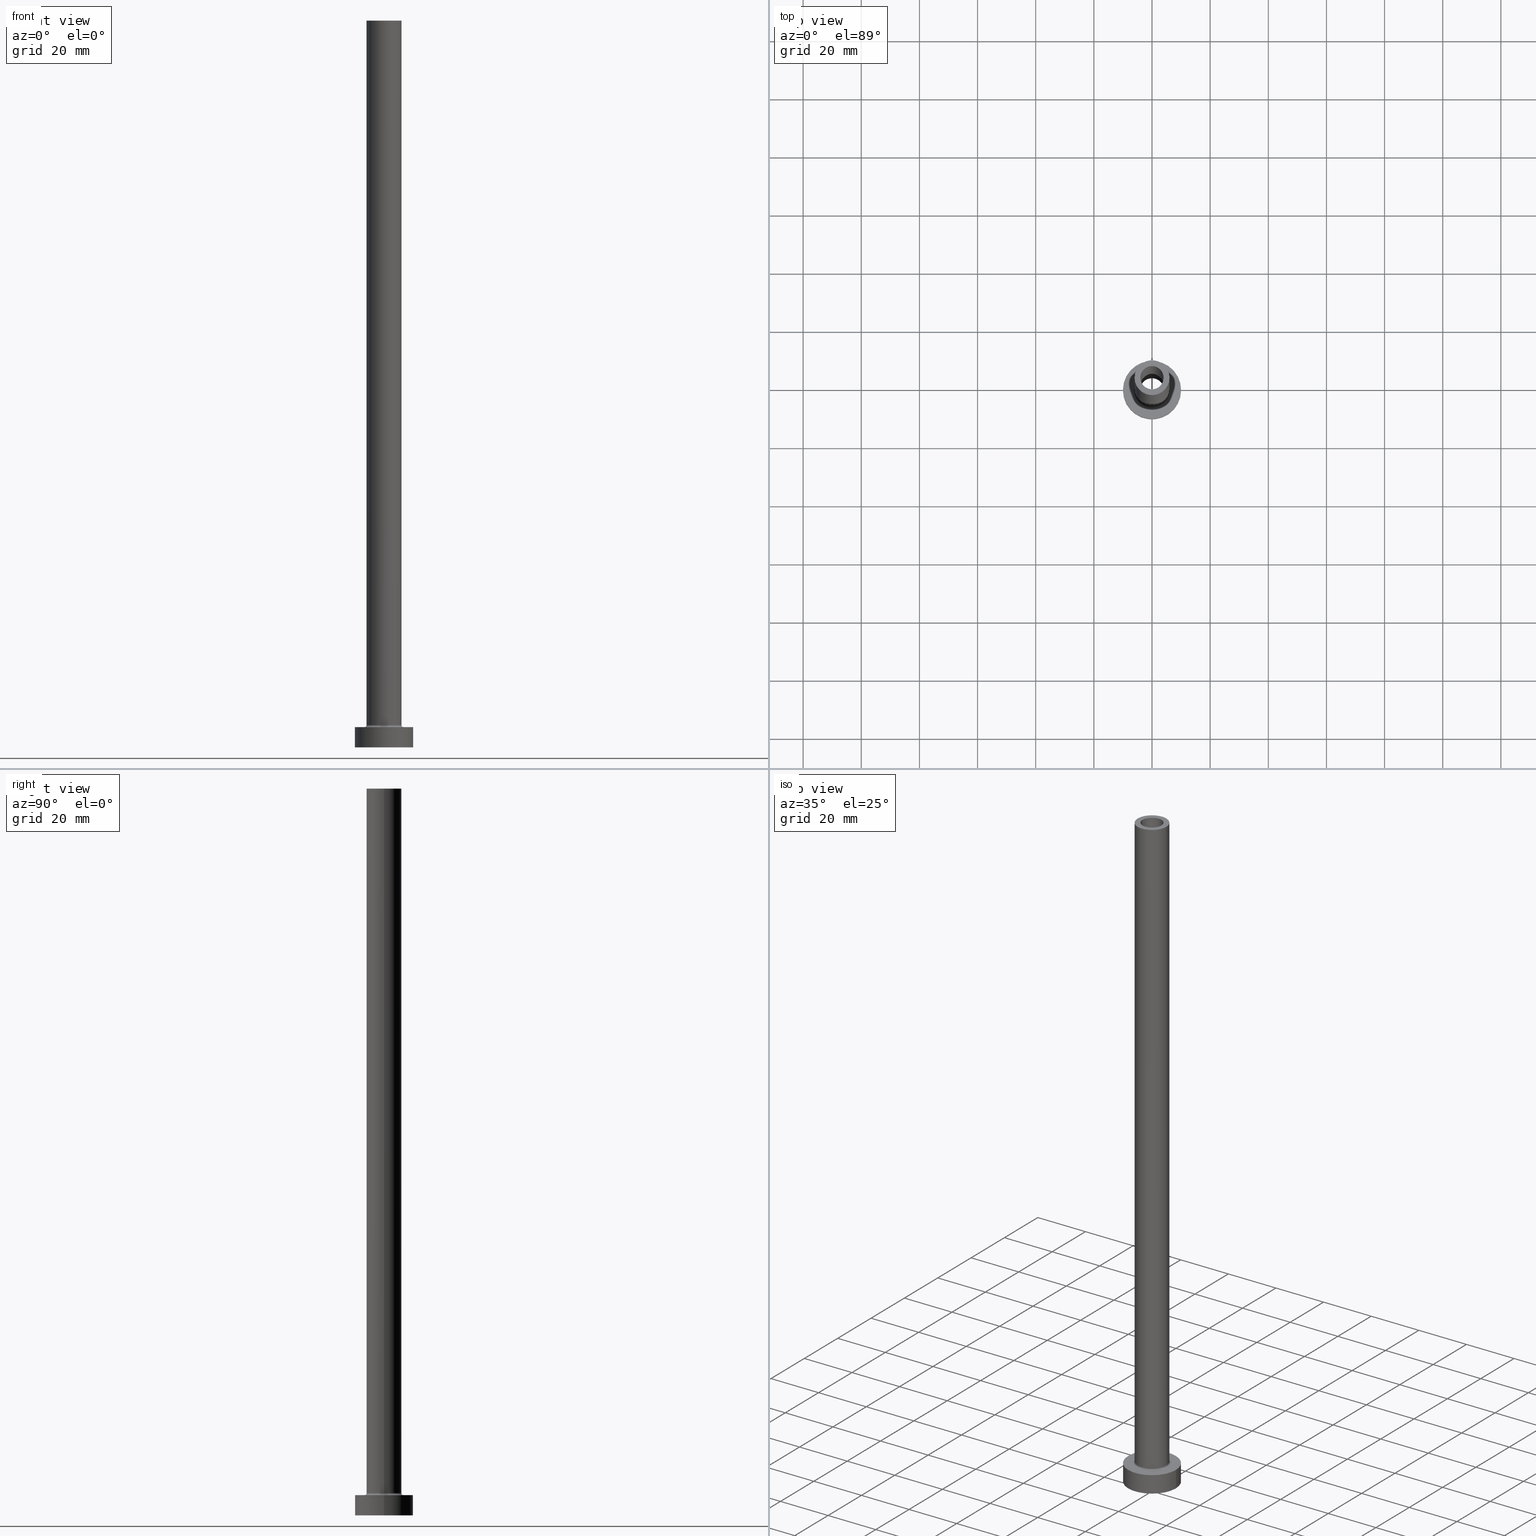
[diagram: canonical four-view strip — front | top / right | iso, engineering-drawing reading convention]
A machine part, canonical four-view strip (front | top / right | iso — engineering-drawing reading convention). The complete STEP part file that produces these views, byte-faithful:
ISO-10303-21;
HEADER;
FILE_DESCRIPTION (( 'STEP AP203' ),
    '1' );
FILE_NAME ('218a.STEP',
    '2023-02-13T12:45:19',
    ( '' ),
    ( '' ),
    'SwSTEP 2.0',
    'SolidWorks 2019',
    '' );
FILE_SCHEMA (( 'CONFIG_CONTROL_DESIGN' ));
ENDSEC;

DATA;
#1 = CARTESIAN_POINT ( 'NONE',  ( 0.000000000000000000, 0.000000000000000000, 250.0000000000000000 ) ) ;
#2 = ORIENTED_EDGE ( 'NONE', *, *, #33, .F. ) ;
#3 = CARTESIAN_POINT ( 'NONE',  ( 4.150000000000000355, 5.082284216461514170E-16, 0.000000000000000000 ) ) ;
#4 = ORIENTED_EDGE ( 'NONE', *, *, #184, .F. ) ;
#5 = PERSON_AND_ORGANIZATION ( #108, #148 ) ;
#6 = EDGE_LOOP ( 'NONE', ( #296, #183, #154, #351 ) ) ;
#7 = AXIS2_PLACEMENT_3D ( 'NONE', #61, #211, #136 ) ;
#8 = TOROIDAL_SURFACE ( 'NONE', #300, 6.700000000000001066, 0.6999999999999999556 ) ;
#9 = EDGE_LOOP ( 'NONE', ( #455, #192 ) ) ;
#10 = DATE_AND_TIME ( #282, #379 ) ;
#11 = CARTESIAN_POINT ( 'NONE',  ( 0.000000000000000000, 0.000000000000000000, 250.0000000000000000 ) ) ;
#12 = CARTESIAN_POINT ( 'NONE',  ( 0.000000000000000000, 0.000000000000000000, 0.000000000000000000 ) ) ;
#13 = DIRECTION ( 'NONE',  ( 0.000000000000000000, 0.000000000000000000, 1.000000000000000000 ) ) ;
#14 = EDGE_CURVE ( 'NONE', #263, #46, #224, .T. ) ;
#15 = AXIS2_PLACEMENT_3D ( 'NONE', #352, #257, #206 ) ;
#16 = DIRECTION ( 'NONE',  ( 1.000000000000000000, 0.000000000000000000, 0.000000000000000000 ) ) ;
#17 = AXIS2_PLACEMENT_3D ( 'NONE', #1, #118, #141 ) ;
#18 = CARTESIAN_POINT ( 'NONE',  ( -4.000000000000000000, 0.000000000000000000, 250.0000000000000000 ) ) ;
#19 = EDGE_LOOP ( 'NONE', ( #424, #82, #165, #220 ) ) ;
#20 = FACE_OUTER_BOUND ( 'NONE', #267, .T. ) ;
#21 = CARTESIAN_POINT ( 'NONE',  ( -4.150000000000000355, 0.000000000000000000, 0.000000000000000000 ) ) ;
#22 = PRODUCT ( '218a', '218a', '', ( #34 ) ) ;
#23 = EDGE_CURVE ( 'NONE', #39, #92, #186, .T. ) ;
#24 = DIRECTION ( 'NONE',  ( -1.000000000000000000, 0.000000000000000000, 0.000000000000000000 ) ) ;
#25 = CIRCLE ( 'NONE', #57, 6.000000000000000888 ) ;
#26 = CIRCLE ( 'NONE', #292, 10.00000000000000000 ) ;
#27 = CYLINDRICAL_SURFACE ( 'NONE', #266, 4.150000000000000355 ) ;
#28 =( LENGTH_UNIT ( ) NAMED_UNIT ( * ) SI_UNIT ( .MILLI., .METRE. ) );
#29 = CARTESIAN_POINT ( 'NONE',  ( 10.00000000000000000, 1.224646799147353256E-15, 7.000000000000000000 ) ) ;
#30 = FACE_BOUND ( 'NONE', #289, .T. ) ;
#31 = CIRCLE ( 'NONE', #181, 6.700000000000001066 ) ;
#32 =( NAMED_UNIT ( * ) SI_UNIT ( $, .STERADIAN. ) SOLID_ANGLE_UNIT ( ) );
#33 = EDGE_CURVE ( 'NONE', #457, #392, #242, .T. ) ;
#34 = MECHANICAL_CONTEXT ( 'NONE', #213, 'mechanical' ) ;
#35 = CYLINDRICAL_SURFACE ( 'NONE', #248, 10.00000000000000000 ) ;
#36 = ORIENTED_EDGE ( 'NONE', *, *, #14, .F. ) ;
#37 = ADVANCED_BREP_SHAPE_REPRESENTATION ( '218a', ( #297, #304 ), #173 ) ;
#38 = DIRECTION ( 'NONE',  ( 1.000000000000000000, 0.000000000000000000, 0.000000000000000000 ) ) ;
#39 = VERTEX_POINT ( 'NONE', #418 ) ;
#40 = VECTOR ( 'NONE', #68, 1000.000000000000000 ) ;
#41 = VERTEX_POINT ( 'NONE', #461 ) ;
#42 = FACE_BOUND ( 'NONE', #49, .T. ) ;
#43 = SECURITY_CLASSIFICATION_LEVEL ( 'unclassified' ) ;
#44 = CC_DESIGN_PERSON_AND_ORGANIZATION_ASSIGNMENT ( #178, #318, ( #225 ) ) ;
#45 = CYLINDRICAL_SURFACE ( 'NONE', #137, 6.000000000000000888 ) ;
#46 = VERTEX_POINT ( 'NONE', #103 ) ;
#47 = CARTESIAN_POINT ( 'NONE',  ( 10.00000000000000000, 1.224646799147353256E-15, 0.000000000000000000 ) ) ;
#48 = PERSON_AND_ORGANIZATION ( #108, #148 ) ;
#49 = EDGE_LOOP ( 'NONE', ( #315, #259 ) ) ;
#50 = CARTESIAN_POINT ( 'NONE',  ( 0.000000000000000000, 0.000000000000000000, 7.000000000000000000 ) ) ;
#51 = CARTESIAN_POINT ( 'NONE',  ( 0.000000000000000000, 0.000000000000000000, 7.000000000000000000 ) ) ;
#52 = FACE_OUTER_BOUND ( 'NONE', #223, .T. ) ;
#53 = DIRECTION ( 'NONE',  ( 0.000000000000000000, 0.000000000000000000, 1.000000000000000000 ) ) ;
#54 = CYLINDRICAL_SURFACE ( 'NONE', #100, 4.000000000000000000 ) ;
#55 = ADVANCED_FACE ( 'NONE', ( #293, #101 ), #381, .F. ) ;
#56 = EDGE_CURVE ( 'NONE', #46, #239, #93, .T. ) ;
#57 = AXIS2_PLACEMENT_3D ( 'NONE', #241, #280, #198 ) ;
#58 = VECTOR ( 'NONE', #222, 1000.000000000000000 ) ;
#59 = EDGE_CURVE ( 'NONE', #398, #117, #450, .T. ) ;
#60 = CARTESIAN_POINT ( 'NONE',  ( 0.000000000000000000, 0.000000000000000000, 205.0000000000000284 ) ) ;
#61 = CARTESIAN_POINT ( 'NONE',  ( -6.700000000000001066, 8.205133554287267548E-16, 7.700000000000012612 ) ) ;
#62 = DIRECTION ( 'NONE',  ( 1.000000000000000000, 0.000000000000000000, 0.000000000000000000 ) ) ;
#63 = CARTESIAN_POINT ( 'NONE',  ( 0.000000000000000000, 0.000000000000000000, 250.0000000000000000 ) ) ;
#64 = FACE_OUTER_BOUND ( 'NONE', #115, .T. ) ;
#65 = ORIENTED_EDGE ( 'NONE', *, *, #56, .F. ) ;
#66 = PRODUCT_RELATED_PRODUCT_CATEGORY ( 'detail', '', ( #22 ) ) ;
#67 = CC_DESIGN_APPROVAL ( #126, ( #283 ) ) ;
#68 = DIRECTION ( 'NONE',  ( -0.000000000000000000, -0.000000000000000000, -1.000000000000000000 ) ) ;
#69 = DIRECTION ( 'NONE',  ( 0.000000000000000000, 0.000000000000000000, 1.000000000000000000 ) ) ;
#70 = DATE_AND_TIME ( #312, #243 ) ;
#71 = PERSON_AND_ORGANIZATION ( #108, #148 ) ;
#72 = ORIENTED_EDGE ( 'NONE', *, *, #442, .F. ) ;
#73 = CARTESIAN_POINT ( 'NONE',  ( 0.000000000000000000, 0.000000000000000000, 216.7379725676967155 ) ) ;
#74 = PERSON_AND_ORGANIZATION_ROLE ( 'creator' ) ;
#75 = DIRECTION ( 'NONE',  ( 0.000000000000000000, 0.000000000000000000, 1.000000000000000000 ) ) ;
#76 = VERTEX_POINT ( 'NONE', #342 ) ;
#77 = ADVANCED_FACE ( 'NONE', ( #193, #134 ), #90, .F. ) ;
#78 = DIRECTION ( 'NONE',  ( 1.000000000000000000, 0.000000000000000000, 0.000000000000000000 ) ) ;
#79 = ORIENTED_EDGE ( 'NONE', *, *, #130, .F. ) ;
#80 = EDGE_CURVE ( 'NONE', #392, #457, #303, .T. ) ;
#81 = EDGE_LOOP ( 'NONE', ( #454, #268, #159, #177 ) ) ;
#82 = ORIENTED_EDGE ( 'NONE', *, *, #144, .T. ) ;
#83 = ORIENTED_EDGE ( 'NONE', *, *, #169, .T. ) ;
#84 = COORDINATED_UNIVERSAL_TIME_OFFSET ( 1, 0, .AHEAD. ) ;
#85 = APPROVAL ( #135, 'NEUR�EN�' ) ;
#86 = DIRECTION ( 'NONE',  ( 1.000000000000000000, 0.000000000000000000, 0.000000000000000000 ) ) ;
#87 = DIRECTION ( 'NONE',  ( 0.000000000000000000, 0.000000000000000000, 1.000000000000000000 ) ) ;
#88 = CYLINDRICAL_SURFACE ( 'NONE', #445, 10.00000000000000000 ) ;
#89 = ORIENTED_EDGE ( 'NONE', *, *, #144, .F. ) ;
#90 = PLANE ( 'NONE',  #275 ) ;
#91 = DIRECTION ( 'NONE',  ( 1.000000000000000000, 0.000000000000000000, 0.000000000000000000 ) ) ;
#92 = VERTEX_POINT ( 'NONE', #413 ) ;
#93 = CIRCLE ( 'NONE', #195, 6.700000000000001066 ) ;
#94 = AXIS2_PLACEMENT_3D ( 'NONE', #367, #187, #402 ) ;
#95 = EDGE_CURVE ( 'NONE', #457, #398, #274, .T. ) ;
#96 = FACE_OUTER_BOUND ( 'NONE', #19, .T. ) ;
#97 = DIRECTION ( 'NONE',  ( 0.000000000000000000, 0.000000000000000000, -1.000000000000000000 ) ) ;
#98 = DIRECTION ( 'NONE',  ( 1.000000000000000000, 0.000000000000000000, 0.000000000000000000 ) ) ;
#99 = CC_DESIGN_PERSON_AND_ORGANIZATION_ASSIGNMENT ( #48, #74, ( #102 ) ) ;
#100 = AXIS2_PLACEMENT_3D ( 'NONE', #338, #447, #167 ) ;
#101 = FACE_OUTER_BOUND ( 'NONE', #162, .T. ) ;
#102 = PRODUCT_DEFINITION_FORMATION_WITH_SPECIFIED_SOURCE ( 'LIBOVOLN�', '', #22, .NOT_KNOWN. ) ;
#103 = CARTESIAN_POINT ( 'NONE',  ( -6.700000000000001066, 8.205133554287267548E-16, 7.000000000000006217 ) ) ;
#104 = DATE_AND_TIME ( #417, #325 ) ;
#105 = PERSON_AND_ORGANIZATION_ROLE ( 'design_owner' ) ;
#106 = EDGE_CURVE ( 'NONE', #41, #422, #324, .T. ) ;
#107 = CARTESIAN_POINT ( 'NONE',  ( 0.000000000000000000, 0.000000000000000000, 7.700000000000012612 ) ) ;
#108 = PERSON ( 'NEUR�EN�', 'NEUR�EN�', 'NEUR�EN�', ('NEUR�EN�'), ('NEUR�EN�'), ('NEUR�EN�') ) ;
#109 = DATE_AND_TIME ( #288, #436 ) ;
#110 = DIRECTION ( 'NONE',  ( 1.000000000000000000, 0.000000000000000000, 0.000000000000000000 ) ) ;
#111 = AXIS2_PLACEMENT_3D ( 'NONE', #209, #138, #423 ) ;
#112 = ORIENTED_EDGE ( 'NONE', *, *, #80, .T. ) ;
#113 = CARTESIAN_POINT ( 'NONE',  ( 0.000000000000000000, 0.000000000000000000, 205.0000000000000284 ) ) ;
#114 = CARTESIAN_POINT ( 'NONE',  ( 6.000000000000000888, 7.347880794884120722E-16, 250.0000000000000000 ) ) ;
#115 = EDGE_LOOP ( 'NONE', ( #189, #294 ) ) ;
#116 = DATE_TIME_ROLE ( 'classification_date' ) ;
#117 = VERTEX_POINT ( 'NONE', #21 ) ;
#118 = DIRECTION ( 'NONE',  ( 0.000000000000000000, 0.000000000000000000, 1.000000000000000000 ) ) ;
#119 = ORIENTED_EDGE ( 'NONE', *, *, #184, .T. ) ;
#120 = AXIS2_PLACEMENT_3D ( 'NONE', #60, #75, #344 ) ;
#121 = EDGE_LOOP ( 'NONE', ( #4, #175, #355, #326 ) ) ;
#122 = CC_DESIGN_APPROVAL ( #245, ( #225 ) ) ;
#123 = EDGE_CURVE ( 'NONE', #428, #176, #443, .T. ) ;
#124 = ORIENTED_EDGE ( 'NONE', *, *, #158, .F. ) ;
#125 = DIRECTION ( 'NONE',  ( 0.000000000000000000, -1.000000000000000000, 0.000000000000000000 ) ) ;
#126 = APPROVAL ( #320, 'NEUR�EN�' ) ;
#127 = SHAPE_DEFINITION_REPRESENTATION ( #440, #37 ) ;
#128 = AXIS2_PLACEMENT_3D ( 'NONE', #63, #97, #24 ) ;
#129 = EDGE_LOOP ( 'NONE', ( #250, #354 ) ) ;
#130 = EDGE_CURVE ( 'NONE', #41, #263, #375, .T. ) ;
#131 = CARTESIAN_POINT ( 'NONE',  ( -10.00000000000000000, 0.000000000000000000, 7.000000000000000000 ) ) ;
#132 = AXIS2_PLACEMENT_3D ( 'NONE', #371, #53, #335 ) ;
#133 = APPROVAL_PERSON_ORGANIZATION ( #5, #245, #341 ) ;
#134 = FACE_OUTER_BOUND ( 'NONE', #9, .T. ) ;
#135 = APPROVAL_STATUS ( 'not_yet_approved' ) ;
#136 = DIRECTION ( 'NONE',  ( -1.000000000000000000, 1.224646799147353454E-16, 0.000000000000000000 ) ) ;
#137 = AXIS2_PLACEMENT_3D ( 'NONE', #190, #329, #185 ) ;
#138 = DIRECTION ( 'NONE',  ( 0.000000000000000000, 0.000000000000000000, 1.000000000000000000 ) ) ;
#139 = DIRECTION ( 'NONE',  ( 0.000000000000000000, 0.000000000000000000, 1.000000000000000000 ) ) ;
#140 = DIRECTION ( 'NONE',  ( 0.000000000000000000, 0.000000000000000000, 1.000000000000000000 ) ) ;
#141 = DIRECTION ( 'NONE',  ( 1.000000000000000000, 0.000000000000000000, 0.000000000000000000 ) ) ;
#142 = CARTESIAN_POINT ( 'NONE',  ( 6.000000000000000888, 7.347880794884120722E-16, 250.0000000000000000 ) ) ;
#143 = CARTESIAN_POINT ( 'NONE',  ( 0.000000000000000000, 0.000000000000000000, 250.0000000000000000 ) ) ;
#144 = EDGE_CURVE ( 'NONE', #400, #287, #317, .T. ) ;
#145 = DIRECTION ( 'NONE',  ( 1.000000000000000000, 0.000000000000000000, 0.000000000000000000 ) ) ;
#146 = AXIS2_PLACEMENT_3D ( 'NONE', #444, #409, #98 ) ;
#147 = ADVANCED_FACE ( 'NONE', ( #350 ), #27, .F. ) ;
#148 = ORGANIZATION ( 'NEUR�EN�', 'NEUR�EN�', '' ) ;
#149 = EDGE_LOOP ( 'NONE', ( #72, #124, #347, #441 ) ) ;
#150 = DATE_AND_TIME ( #459, #401 ) ;
#151 = ADVANCED_FACE ( 'NONE', ( #30, #64 ), #311, .T. ) ;
#152 = DIRECTION ( 'NONE',  ( -0.000000000000000000, -0.000000000000000000, -1.000000000000000000 ) ) ;
#153 = ORIENTED_EDGE ( 'NONE', *, *, #327, .T. ) ;
#154 = ORIENTED_EDGE ( 'NONE', *, *, #340, .F. ) ;
#155 = ORIENTED_EDGE ( 'NONE', *, *, #403, .T. ) ;
#156 = APPROVAL_PERSON_ORGANIZATION ( #214, #85, #380 ) ;
#157 = CARTESIAN_POINT ( 'NONE',  ( 4.000000000000000000, 4.898587196589411843E-16, 250.0000000000000000 ) ) ;
#158 = EDGE_CURVE ( 'NONE', #428, #254, #234, .T. ) ;
#159 = ORIENTED_EDGE ( 'NONE', *, *, #23, .F. ) ;
#160 = PLANE ( 'NONE',  #332 ) ;
#161 = CC_DESIGN_SECURITY_CLASSIFICATION ( #225, ( #102 ) ) ;
#162 = EDGE_LOOP ( 'NONE', ( #366, #2 ) ) ;
#163 = ADVANCED_FACE ( 'NONE', ( #42, #330 ), #160, .T. ) ;
#164 = DIRECTION ( 'NONE',  ( 0.000000000000000000, 0.000000000000000000, 1.000000000000000000 ) ) ;
#165 = ORIENTED_EDGE ( 'NONE', *, *, #174, .T. ) ;
#166 = ADVANCED_FACE ( 'NONE', ( #368 ), #88, .T. ) ;
#167 = DIRECTION ( 'NONE',  ( -1.000000000000000000, 0.000000000000000000, 0.000000000000000000 ) ) ;
#168 = VECTOR ( 'NONE', #363, 1000.000000000000000 ) ;
#169 = EDGE_CURVE ( 'NONE', #263, #76, #25, .T. ) ;
#170 = CARTESIAN_POINT ( 'NONE',  ( -4.150000000000000355, 0.000000000000000000, 216.7379725676967155 ) ) ;
#171 = DESIGN_CONTEXT ( 'detailed design', #376, 'design' ) ;
#172 = AXIS2_PLACEMENT_3D ( 'NONE', #249, #260, #420 ) ;
#173 =( GEOMETRIC_REPRESENTATION_CONTEXT ( 3 ) GLOBAL_UNCERTAINTY_ASSIGNED_CONTEXT ( ( #281 ) ) GLOBAL_UNIT_ASSIGNED_CONTEXT ( ( #28, #416, #32 ) ) REPRESENTATION_CONTEXT ( 'NONE', 'WORKASPACE' ) );
#174 = EDGE_CURVE ( 'NONE', #287, #39, #333, .T. ) ;
#175 = ORIENTED_EDGE ( 'NONE', *, *, #442, .T. ) ;
#176 = VERTEX_POINT ( 'NONE', #247 ) ;
#177 = ORIENTED_EDGE ( 'NONE', *, *, #174, .F. ) ;
#178 = PERSON_AND_ORGANIZATION ( #108, #148 ) ;
#179 = CC_DESIGN_DATE_AND_TIME_ASSIGNMENT ( #70, #210, ( #283 ) ) ;
#180 = CIRCLE ( 'NONE', #291, 6.000000000000000888 ) ;
#181 = AXIS2_PLACEMENT_3D ( 'NONE', #50, #271, #86 ) ;
#182 = CARTESIAN_POINT ( 'NONE',  ( 10.00000000000000000, 1.224646799147353256E-15, 7.000000000000000000 ) ) ;
#183 = ORIENTED_EDGE ( 'NONE', *, *, #14, .T. ) ;
#184 = EDGE_CURVE ( 'NONE', #254, #428, #446, .T. ) ;
#185 = DIRECTION ( 'NONE',  ( -1.000000000000000000, 0.000000000000000000, 0.000000000000000000 ) ) ;
#186 = CIRCLE ( 'NONE', #172, 4.000000000000000000 ) ;
#187 = DIRECTION ( 'NONE',  ( 0.000000000000000000, 0.000000000000000000, 1.000000000000000000 ) ) ;
#188 = CYLINDRICAL_SURFACE ( 'NONE', #197, 6.000000000000000888 ) ;
#189 = ORIENTED_EDGE ( 'NONE', *, *, #106, .T. ) ;
#190 = CARTESIAN_POINT ( 'NONE',  ( 0.000000000000000000, 0.000000000000000000, 250.0000000000000000 ) ) ;
#191 = DIRECTION ( 'NONE',  ( 1.000000000000000000, 0.000000000000000000, -0.000000000000000000 ) ) ;
#192 = ORIENTED_EDGE ( 'NONE', *, *, #372, .F. ) ;
#193 = FACE_BOUND ( 'NONE', #301, .T. ) ;
#194 = DIRECTION ( 'NONE',  ( -1.000000000000000000, 0.000000000000000000, 0.000000000000000000 ) ) ;
#195 = AXIS2_PLACEMENT_3D ( 'NONE', #252, #221, #110 ) ;
#196 = CARTESIAN_POINT ( 'NONE',  ( 6.700000000000001066, 0.000000000000000000, 7.700000000000012612 ) ) ;
#197 = AXIS2_PLACEMENT_3D ( 'NONE', #11, #205, #203 ) ;
#198 = DIRECTION ( 'NONE',  ( 1.000000000000000000, 0.000000000000000000, 0.000000000000000000 ) ) ;
#199 = CARTESIAN_POINT ( 'NONE',  ( -6.000000000000000888, 0.000000000000000000, 250.0000000000000000 ) ) ;
#200 = CARTESIAN_POINT ( 'NONE',  ( 0.000000000000000000, 0.000000000000000000, 7.000000000000000000 ) ) ;
#201 = EDGE_CURVE ( 'NONE', #76, #263, #180, .T. ) ;
#202 = CARTESIAN_POINT ( 'NONE',  ( 6.700000000000001066, 0.000000000000000000, 7.000000000000006217 ) ) ;
#203 = DIRECTION ( 'NONE',  ( -1.000000000000000000, 0.000000000000000000, 0.000000000000000000 ) ) ;
#204 = AXIS2_PLACEMENT_3D ( 'NONE', #406, #438, #230 ) ;
#205 = DIRECTION ( 'NONE',  ( -0.000000000000000000, -0.000000000000000000, -1.000000000000000000 ) ) ;
#206 = DIRECTION ( 'NONE',  ( 1.000000000000000000, 0.000000000000000000, 0.000000000000000000 ) ) ;
#207 = EDGE_CURVE ( 'NONE', #117, #398, #339, .T. ) ;
#208 = LINE ( 'NONE', #170, #365 ) ;
#209 = CARTESIAN_POINT ( 'NONE',  ( 0.000000000000000000, 0.000000000000000000, 250.0000000000000000 ) ) ;
#210 = DATE_TIME_ROLE ( 'creation_date' ) ;
#211 = DIRECTION ( 'NONE',  ( 1.224646799147353207E-16, 1.000000000000000000, -0.000000000000000000 ) ) ;
#212 = ADVANCED_FACE ( 'NONE', ( #96 ), #54, .F. ) ;
#213 = APPLICATION_CONTEXT ( 'configuration controlled 3d designs of mechanical parts and assemblies' ) ;
#214 = PERSON_AND_ORGANIZATION ( #108, #148 ) ;
#215 = CLOSED_SHELL ( 'NONE', ( #236, #147, #425, #345, #388, #166, #163, #77, #231, #151, #411, #270, #55, #212 ) ) ;
#216 = PERSON_AND_ORGANIZATION ( #108, #148 ) ;
#217 = CIRCLE ( 'NONE', #17, 6.000000000000000888 ) ;
#218 = ORIENTED_EDGE ( 'NONE', *, *, #95, .T. ) ;
#219 = PERSON_AND_ORGANIZATION_ROLE ( 'creator' ) ;
#220 = ORIENTED_EDGE ( 'NONE', *, *, #265, .F. ) ;
#221 = DIRECTION ( 'NONE',  ( -0.000000000000000000, -0.000000000000000000, -1.000000000000000000 ) ) ;
#222 = DIRECTION ( 'NONE',  ( -0.000000000000000000, -0.000000000000000000, -1.000000000000000000 ) ) ;
#223 = EDGE_LOOP ( 'NONE', ( #232, #290, #298, #262 ) ) ;
#224 = CIRCLE ( 'NONE', #7, 0.7000000000000000666 ) ;
#225 = SECURITY_CLASSIFICATION ( '', '', #43 ) ;
#226 = CARTESIAN_POINT ( 'NONE',  ( 4.000000000000000000, 4.898587196589411843E-16, 250.0000000000000000 ) ) ;
#227 = ORIENTED_EDGE ( 'NONE', *, *, #201, .T. ) ;
#228 = DIRECTION ( 'NONE',  ( 1.000000000000000000, 0.000000000000000000, 0.000000000000000000 ) ) ;
#229 = ORIENTED_EDGE ( 'NONE', *, *, #456, .F. ) ;
#230 = DIRECTION ( 'NONE',  ( -1.000000000000000000, 0.000000000000000000, 0.000000000000000000 ) ) ;
#231 = ADVANCED_FACE ( 'NONE', ( #412 ), #188, .T. ) ;
#232 = ORIENTED_EDGE ( 'NONE', *, *, #95, .F. ) ;
#233 = CYLINDRICAL_SURFACE ( 'NONE', #204, 4.150000000000000355 ) ;
#234 = CIRCLE ( 'NONE', #346, 10.00000000000000000 ) ;
#235 = AXIS2_PLACEMENT_3D ( 'NONE', #12, #87, #78 ) ;
#236 = ADVANCED_FACE ( 'NONE', ( #453 ), #448, .F. ) ;
#237 = LINE ( 'NONE', #157, #168 ) ;
#238 = EDGE_CURVE ( 'NONE', #392, #117, #208, .T. ) ;
#239 = VERTEX_POINT ( 'NONE', #202 ) ;
#240 = DIRECTION ( 'NONE',  ( 0.000000000000000000, 0.000000000000000000, 1.000000000000000000 ) ) ;
#241 = CARTESIAN_POINT ( 'NONE',  ( 0.000000000000000000, 0.000000000000000000, 7.700000000000012612 ) ) ;
#242 = CIRCLE ( 'NONE', #299, 4.150000000000000355 ) ;
#243 = LOCAL_TIME ( 13, 45, 19.00000000000000000, #84 ) ;
#244 = DIRECTION ( 'NONE',  ( 1.000000000000000000, 0.000000000000000000, -0.000000000000000000 ) ) ;
#245 = APPROVAL ( #394, 'NEUR�EN�' ) ;
#246 = DIRECTION ( 'NONE',  ( 0.000000000000000000, 0.000000000000000000, -1.000000000000000000 ) ) ;
#247 = CARTESIAN_POINT ( 'NONE',  ( -10.00000000000000000, 0.000000000000000000, 0.000000000000000000 ) ) ;
#248 = AXIS2_PLACEMENT_3D ( 'NONE', #391, #152, #396 ) ;
#249 = CARTESIAN_POINT ( 'NONE',  ( 0.000000000000000000, 0.000000000000000000, 205.0000000000000284 ) ) ;
#250 = ORIENTED_EDGE ( 'NONE', *, *, #23, .T. ) ;
#251 = APPLICATION_PROTOCOL_DEFINITION ( 'international standard', 'config_control_design', 1994, #213 ) ;
#252 = CARTESIAN_POINT ( 'NONE',  ( 0.000000000000000000, 0.000000000000000000, 7.000000000000000000 ) ) ;
#253 = CARTESIAN_POINT ( 'NONE',  ( -10.00000000000000000, 0.000000000000000000, 7.000000000000000000 ) ) ;
#254 = VERTEX_POINT ( 'NONE', #29 ) ;
#255 = AXIS2_PLACEMENT_3D ( 'NONE', #200, #336, #91 ) ;
#256 = COORDINATED_UNIVERSAL_TIME_OFFSET ( 1, 0, .AHEAD. ) ;
#257 = DIRECTION ( 'NONE',  ( -0.000000000000000000, -0.000000000000000000, -1.000000000000000000 ) ) ;
#258 = CC_DESIGN_PERSON_AND_ORGANIZATION_ASSIGNMENT ( #71, #219, ( #283 ) ) ;
#259 = ORIENTED_EDGE ( 'NONE', *, *, #56, .T. ) ;
#260 = DIRECTION ( 'NONE',  ( 0.000000000000000000, 0.000000000000000000, 1.000000000000000000 ) ) ;
#261 = EDGE_LOOP ( 'NONE', ( #112, #218, #316, #369 ) ) ;
#262 = ORIENTED_EDGE ( 'NONE', *, *, #207, .T. ) ;
#263 = VERTEX_POINT ( 'NONE', #370 ) ;
#264 = DIRECTION ( 'NONE',  ( 0.000000000000000000, 0.000000000000000000, 1.000000000000000000 ) ) ;
#265 = EDGE_CURVE ( 'NONE', #92, #39, #285, .T. ) ;
#266 = AXIS2_PLACEMENT_3D ( 'NONE', #73, #449, #389 ) ;
#267 = EDGE_LOOP ( 'NONE', ( #433, #155, #227, #79 ) ) ;
#268 = ORIENTED_EDGE ( 'NONE', *, *, #357, .T. ) ;
#269 = DIRECTION ( 'NONE',  ( 0.000000000000000000, 0.000000000000000000, -1.000000000000000000 ) ) ;
#270 = ADVANCED_FACE ( 'NONE', ( #52 ), #233, .F. ) ;
#271 = DIRECTION ( 'NONE',  ( -0.000000000000000000, -0.000000000000000000, -1.000000000000000000 ) ) ;
#272 = APPROVAL_PERSON_ORGANIZATION ( #313, #126, #460 ) ;
#273 = CC_DESIGN_PERSON_AND_ORGANIZATION_ASSIGNMENT ( #216, #105, ( #22 ) ) ;
#274 = LINE ( 'NONE', #377, #364 ) ;
#275 = AXIS2_PLACEMENT_3D ( 'NONE', #279, #277, #244 ) ;
#276 = AXIS2_PLACEMENT_3D ( 'NONE', #310, #431, #451 ) ;
#277 = DIRECTION ( 'NONE',  ( 0.000000000000000000, 0.000000000000000000, 1.000000000000000000 ) ) ;
#278 = CARTESIAN_POINT ( 'NONE',  ( 0.000000000000000000, 0.000000000000000000, 7.000000000000000000 ) ) ;
#279 = CARTESIAN_POINT ( 'NONE',  ( 0.000000000000000000, 0.000000000000000000, 0.000000000000000000 ) ) ;
#280 = DIRECTION ( 'NONE',  ( 0.000000000000000000, 0.000000000000000000, 1.000000000000000000 ) ) ;
#281 = UNCERTAINTY_MEASURE_WITH_UNIT (LENGTH_MEASURE( 1.000000000000000082E-05 ), #28, 'distance_accuracy_value', 'NONE');
#282 = CALENDAR_DATE ( 2023, 13, 2 ) ;
#283 = PRODUCT_DEFINITION ( 'NEZN�M�', '', #102, #171 ) ;
#284 = AXIS2_PLACEMENT_3D ( 'NONE', #143, #295, #439 ) ;
#285 = CIRCLE ( 'NONE', #94, 4.000000000000000000 ) ;
#286 = COORDINATED_UNIVERSAL_TIME_OFFSET ( 1, 0, .AHEAD. ) ;
#287 = VERTEX_POINT ( 'NONE', #305 ) ;
#288 = CALENDAR_DATE ( 2023, 13, 2 ) ;
#289 = EDGE_LOOP ( 'NONE', ( #229, #89 ) ) ;
#290 = ORIENTED_EDGE ( 'NONE', *, *, #33, .T. ) ;
#291 = AXIS2_PLACEMENT_3D ( 'NONE', #404, #164, #415 ) ;
#292 = AXIS2_PLACEMENT_3D ( 'NONE', #322, #383, #62 ) ;
#293 = FACE_BOUND ( 'NONE', #129, .T. ) ;
#294 = ORIENTED_EDGE ( 'NONE', *, *, #452, .T. ) ;
#295 = DIRECTION ( 'NONE',  ( 0.000000000000000000, 0.000000000000000000, 1.000000000000000000 ) ) ;
#296 = ORIENTED_EDGE ( 'NONE', *, *, #169, .F. ) ;
#297 = MANIFOLD_SOLID_BREP ( 'Odebrat vysunut�m4', #215 ) ;
#298 = ORIENTED_EDGE ( 'NONE', *, *, #238, .T. ) ;
#299 = AXIS2_PLACEMENT_3D ( 'NONE', #113, #140, #145 ) ;
#300 = AXIS2_PLACEMENT_3D ( 'NONE', #107, #69, #349 ) ;
#301 = EDGE_LOOP ( 'NONE', ( #397, #405 ) ) ;
#302 = APPROVAL_DATE_TIME ( #10, #245 ) ;
#303 = CIRCLE ( 'NONE', #373, 4.150000000000000355 ) ;
#304 = AXIS2_PLACEMENT_3D ( 'NONE', #429, #139, #343 ) ;
#305 = CARTESIAN_POINT ( 'NONE',  ( -4.000000000000000000, 0.000000000000000000, 250.0000000000000000 ) ) ;
#306 = DIRECTION ( 'NONE',  ( -0.000000000000000000, -0.000000000000000000, -1.000000000000000000 ) ) ;
#307 = DIRECTION ( 'NONE',  ( 0.000000000000000000, 0.000000000000000000, -1.000000000000000000 ) ) ;
#308 = TOROIDAL_SURFACE ( 'NONE', #410, 6.700000000000001066, 0.6999999999999999556 ) ;
#309 = VECTOR ( 'NONE', #407, 1000.000000000000000 ) ;
#310 = CARTESIAN_POINT ( 'NONE',  ( 0.000000000000000000, 0.000000000000000000, 250.0000000000000000 ) ) ;
#311 = PLANE ( 'NONE',  #284 ) ;
#312 = CALENDAR_DATE ( 2023, 13, 2 ) ;
#313 = PERSON_AND_ORGANIZATION ( #108, #148 ) ;
#314 = FACE_OUTER_BOUND ( 'NONE', #6, .T. ) ;
#315 = ORIENTED_EDGE ( 'NONE', *, *, #340, .T. ) ;
#316 = ORIENTED_EDGE ( 'NONE', *, *, #59, .T. ) ;
#317 = CIRCLE ( 'NONE', #111, 4.000000000000000000 ) ;
#318 = PERSON_AND_ORGANIZATION_ROLE ( 'classification_officer' ) ;
#319 = CIRCLE ( 'NONE', #374, 0.7000000000000000666 ) ;
#320 = APPROVAL_STATUS ( 'not_yet_approved' ) ;
#321 = ORIENTED_EDGE ( 'NONE', *, *, #403, .F. ) ;
#322 = CARTESIAN_POINT ( 'NONE',  ( 0.000000000000000000, 0.000000000000000000, 0.000000000000000000 ) ) ;
#323 = PERSON_AND_ORGANIZATION ( #108, #148 ) ;
#324 = CIRCLE ( 'NONE', #132, 6.000000000000000888 ) ;
#325 = LOCAL_TIME ( 13, 45, 19.00000000000000000, #286 ) ;
#326 = ORIENTED_EDGE ( 'NONE', *, *, #123, .F. ) ;
#327 = EDGE_CURVE ( 'NONE', #76, #239, #319, .T. ) ;
#328 = COORDINATED_UNIVERSAL_TIME_OFFSET ( 1, 0, .AHEAD. ) ;
#329 = DIRECTION ( 'NONE',  ( -0.000000000000000000, -0.000000000000000000, -1.000000000000000000 ) ) ;
#330 = FACE_OUTER_BOUND ( 'NONE', #348, .T. ) ;
#331 = CARTESIAN_POINT ( 'NONE',  ( 0.000000000000000000, 0.000000000000000000, 205.0000000000000284 ) ) ;
#332 = AXIS2_PLACEMENT_3D ( 'NONE', #51, #13, #191 ) ;
#333 = LINE ( 'NONE', #18, #378 ) ;
#334 = CIRCLE ( 'NONE', #276, 4.000000000000000000 ) ;
#335 = DIRECTION ( 'NONE',  ( 1.000000000000000000, 0.000000000000000000, 0.000000000000000000 ) ) ;
#336 = DIRECTION ( 'NONE',  ( 0.000000000000000000, 0.000000000000000000, 1.000000000000000000 ) ) ;
#337 = DIRECTION ( 'NONE',  ( -0.000000000000000000, -0.000000000000000000, -1.000000000000000000 ) ) ;
#338 = CARTESIAN_POINT ( 'NONE',  ( 0.000000000000000000, 0.000000000000000000, 250.0000000000000000 ) ) ;
#339 = CIRCLE ( 'NONE', #146, 4.150000000000000355 ) ;
#340 = EDGE_CURVE ( 'NONE', #239, #46, #31, .T. ) ;
#341 = APPROVAL_ROLE ( '' ) ;
#342 = CARTESIAN_POINT ( 'NONE',  ( 6.000000000000000888, 7.347880794884120722E-16, 7.700000000000012612 ) ) ;
#343 = DIRECTION ( 'NONE',  ( 1.000000000000000000, 0.000000000000000000, 0.000000000000000000 ) ) ;
#344 = DIRECTION ( 'NONE',  ( 1.000000000000000000, 0.000000000000000000, -0.000000000000000000 ) ) ;
#345 = ADVANCED_FACE ( 'NONE', ( #20 ), #45, .T. ) ;
#346 = AXIS2_PLACEMENT_3D ( 'NONE', #434, #264, #228 ) ;
#347 = ORIENTED_EDGE ( 'NONE', *, *, #123, .T. ) ;
#348 = EDGE_LOOP ( 'NONE', ( #435, #119 ) ) ;
#349 = DIRECTION ( 'NONE',  ( 1.000000000000000000, 0.000000000000000000, 0.000000000000000000 ) ) ;
#350 = FACE_OUTER_BOUND ( 'NONE', #261, .T. ) ;
#351 = ORIENTED_EDGE ( 'NONE', *, *, #327, .F. ) ;
#352 = CARTESIAN_POINT ( 'NONE',  ( 0.000000000000000000, 0.000000000000000000, 0.000000000000000000 ) ) ;
#353 = CARTESIAN_POINT ( 'NONE',  ( 0.000000000000000000, 0.000000000000000000, 7.700000000000012612 ) ) ;
#354 = ORIENTED_EDGE ( 'NONE', *, *, #265, .T. ) ;
#355 = ORIENTED_EDGE ( 'NONE', *, *, #372, .T. ) ;
#356 = CC_DESIGN_APPROVAL ( #85, ( #102 ) ) ;
#357 = EDGE_CURVE ( 'NONE', #400, #92, #237, .T. ) ;
#358 = LINE ( 'NONE', #114, #58 ) ;
#359 = EDGE_LOOP ( 'NONE', ( #36, #430, #153, #65 ) ) ;
#360 = PERSON_AND_ORGANIZATION_ROLE ( 'design_supplier' ) ;
#361 = VERTEX_POINT ( 'NONE', #47 ) ;
#362 = COORDINATED_UNIVERSAL_TIME_OFFSET ( 1, 0, .AHEAD. ) ;
#363 = DIRECTION ( 'NONE',  ( 0.000000000000000000, 0.000000000000000000, -1.000000000000000000 ) ) ;
#364 = VECTOR ( 'NONE', #246, 1000.000000000000000 ) ;
#365 = VECTOR ( 'NONE', #382, 1000.000000000000000 ) ;
#366 = ORIENTED_EDGE ( 'NONE', *, *, #80, .F. ) ;
#367 = CARTESIAN_POINT ( 'NONE',  ( 0.000000000000000000, 0.000000000000000000, 205.0000000000000284 ) ) ;
#368 = FACE_OUTER_BOUND ( 'NONE', #149, .T. ) ;
#369 = ORIENTED_EDGE ( 'NONE', *, *, #238, .F. ) ;
#370 = CARTESIAN_POINT ( 'NONE',  ( -6.000000000000000888, 0.000000000000000000, 7.700000000000012612 ) ) ;
#371 = CARTESIAN_POINT ( 'NONE',  ( 0.000000000000000000, 0.000000000000000000, 250.0000000000000000 ) ) ;
#372 = EDGE_CURVE ( 'NONE', #361, #176, #458, .T. ) ;
#373 = AXIS2_PLACEMENT_3D ( 'NONE', #331, #240, #16 ) ;
#374 = AXIS2_PLACEMENT_3D ( 'NONE', #196, #125, #269 ) ;
#375 = LINE ( 'NONE', #199, #421 ) ;
#376 = APPLICATION_CONTEXT ( 'configuration controlled 3d designs of mechanical parts and assemblies' ) ;
#377 = CARTESIAN_POINT ( 'NONE',  ( 4.150000000000000355, 5.082284216461514170E-16, 216.7379725676967155 ) ) ;
#378 = VECTOR ( 'NONE', #307, 1000.000000000000000 ) ;
#379 = LOCAL_TIME ( 13, 45, 19.00000000000000000, #328 ) ;
#380 = APPROVAL_ROLE ( '' ) ;
#381 = PLANE ( 'NONE',  #120 ) ;
#382 = DIRECTION ( 'NONE',  ( 0.000000000000000000, 0.000000000000000000, -1.000000000000000000 ) ) ;
#383 = DIRECTION ( 'NONE',  ( 0.000000000000000000, 0.000000000000000000, 1.000000000000000000 ) ) ;
#384 = APPROVAL_DATE_TIME ( #104, #85 ) ;
#385 = FACE_OUTER_BOUND ( 'NONE', #359, .T. ) ;
#386 = APPROVAL_DATE_TIME ( #109, #126 ) ;
#387 = EDGE_LOOP ( 'NONE', ( #321, #414, #437, #83 ) ) ;
#388 = ADVANCED_FACE ( 'NONE', ( #427 ), #35, .T. ) ;
#389 = DIRECTION ( 'NONE',  ( -1.000000000000000000, 0.000000000000000000, 0.000000000000000000 ) ) ;
#390 = DIRECTION ( 'NONE',  ( 0.000000000000000000, 0.000000000000000000, 1.000000000000000000 ) ) ;
#391 = CARTESIAN_POINT ( 'NONE',  ( 0.000000000000000000, 0.000000000000000000, 7.000000000000000000 ) ) ;
#392 = VERTEX_POINT ( 'NONE', #432 ) ;
#393 = CC_DESIGN_PERSON_AND_ORGANIZATION_ASSIGNMENT ( #323, #360, ( #102 ) ) ;
#394 = APPROVAL_STATUS ( 'not_yet_approved' ) ;
#395 = CARTESIAN_POINT ( 'NONE',  ( 4.150000000000000355, 5.082284216461514170E-16, 205.0000000000000284 ) ) ;
#396 = DIRECTION ( 'NONE',  ( -1.000000000000000000, 0.000000000000000000, 0.000000000000000000 ) ) ;
#397 = ORIENTED_EDGE ( 'NONE', *, *, #207, .F. ) ;
#398 = VERTEX_POINT ( 'NONE', #3 ) ;
#399 = CC_DESIGN_DATE_AND_TIME_ASSIGNMENT ( #150, #116, ( #225 ) ) ;
#400 = VERTEX_POINT ( 'NONE', #226 ) ;
#401 = LOCAL_TIME ( 13, 45, 19.00000000000000000, #362 ) ;
#402 = DIRECTION ( 'NONE',  ( 1.000000000000000000, 0.000000000000000000, 0.000000000000000000 ) ) ;
#403 = EDGE_CURVE ( 'NONE', #422, #76, #358, .T. ) ;
#404 = CARTESIAN_POINT ( 'NONE',  ( 0.000000000000000000, 0.000000000000000000, 7.700000000000012612 ) ) ;
#405 = ORIENTED_EDGE ( 'NONE', *, *, #59, .F. ) ;
#406 = CARTESIAN_POINT ( 'NONE',  ( 0.000000000000000000, 0.000000000000000000, 216.7379725676967155 ) ) ;
#407 = DIRECTION ( 'NONE',  ( -0.000000000000000000, -0.000000000000000000, -1.000000000000000000 ) ) ;
#408 = EDGE_CURVE ( 'NONE', #176, #361, #26, .T. ) ;
#409 = DIRECTION ( 'NONE',  ( -0.000000000000000000, -0.000000000000000000, -1.000000000000000000 ) ) ;
#410 = AXIS2_PLACEMENT_3D ( 'NONE', #353, #390, #38 ) ;
#411 = ADVANCED_FACE ( 'NONE', ( #385 ), #8, .F. ) ;
#412 = FACE_OUTER_BOUND ( 'NONE', #387, .T. ) ;
#413 = CARTESIAN_POINT ( 'NONE',  ( 4.000000000000000000, 4.898587196589411843E-16, 205.0000000000000284 ) ) ;
#414 = ORIENTED_EDGE ( 'NONE', *, *, #106, .F. ) ;
#415 = DIRECTION ( 'NONE',  ( 1.000000000000000000, 0.000000000000000000, 0.000000000000000000 ) ) ;
#416 =( NAMED_UNIT ( * ) PLANE_ANGLE_UNIT ( ) SI_UNIT ( $, .RADIAN. ) );
#417 = CALENDAR_DATE ( 2023, 13, 2 ) ;
#418 = CARTESIAN_POINT ( 'NONE',  ( -4.000000000000000000, 0.000000000000000000, 205.0000000000000284 ) ) ;
#419 = APPLICATION_PROTOCOL_DEFINITION ( 'international standard', 'config_control_design', 1994, #376 ) ;
#420 = DIRECTION ( 'NONE',  ( 1.000000000000000000, 0.000000000000000000, 0.000000000000000000 ) ) ;
#421 = VECTOR ( 'NONE', #337, 1000.000000000000000 ) ;
#422 = VERTEX_POINT ( 'NONE', #142 ) ;
#423 = DIRECTION ( 'NONE',  ( 1.000000000000000000, 0.000000000000000000, 0.000000000000000000 ) ) ;
#424 = ORIENTED_EDGE ( 'NONE', *, *, #357, .F. ) ;
#425 = ADVANCED_FACE ( 'NONE', ( #314 ), #308, .F. ) ;
#426 = LINE ( 'NONE', #182, #40 ) ;
#427 = FACE_OUTER_BOUND ( 'NONE', #121, .T. ) ;
#428 = VERTEX_POINT ( 'NONE', #253 ) ;
#429 = CARTESIAN_POINT ( 'NONE',  ( 0.000000000000000000, 0.000000000000000000, 0.000000000000000000 ) ) ;
#430 = ORIENTED_EDGE ( 'NONE', *, *, #201, .F. ) ;
#431 = DIRECTION ( 'NONE',  ( 0.000000000000000000, 0.000000000000000000, 1.000000000000000000 ) ) ;
#432 = CARTESIAN_POINT ( 'NONE',  ( -4.150000000000000355, 0.000000000000000000, 205.0000000000000284 ) ) ;
#433 = ORIENTED_EDGE ( 'NONE', *, *, #452, .F. ) ;
#434 = CARTESIAN_POINT ( 'NONE',  ( 0.000000000000000000, 0.000000000000000000, 7.000000000000000000 ) ) ;
#435 = ORIENTED_EDGE ( 'NONE', *, *, #158, .T. ) ;
#436 = LOCAL_TIME ( 13, 45, 19.00000000000000000, #256 ) ;
#437 = ORIENTED_EDGE ( 'NONE', *, *, #130, .T. ) ;
#438 = DIRECTION ( 'NONE',  ( 0.000000000000000000, 0.000000000000000000, -1.000000000000000000 ) ) ;
#439 = DIRECTION ( 'NONE',  ( 1.000000000000000000, 0.000000000000000000, -0.000000000000000000 ) ) ;
#440 = PRODUCT_DEFINITION_SHAPE ( 'NONE', 'NONE',  #283 ) ;
#441 = ORIENTED_EDGE ( 'NONE', *, *, #408, .T. ) ;
#442 = EDGE_CURVE ( 'NONE', #254, #361, #426, .T. ) ;
#443 = LINE ( 'NONE', #131, #309 ) ;
#444 = CARTESIAN_POINT ( 'NONE',  ( 0.000000000000000000, 0.000000000000000000, 0.000000000000000000 ) ) ;
#445 = AXIS2_PLACEMENT_3D ( 'NONE', #278, #306, #194 ) ;
#446 = CIRCLE ( 'NONE', #255, 10.00000000000000000 ) ;
#447 = DIRECTION ( 'NONE',  ( 0.000000000000000000, 0.000000000000000000, -1.000000000000000000 ) ) ;
#448 = CYLINDRICAL_SURFACE ( 'NONE', #128, 4.000000000000000000 ) ;
#449 = DIRECTION ( 'NONE',  ( 0.000000000000000000, 0.000000000000000000, -1.000000000000000000 ) ) ;
#450 = CIRCLE ( 'NONE', #15, 4.150000000000000355 ) ;
#451 = DIRECTION ( 'NONE',  ( 1.000000000000000000, 0.000000000000000000, 0.000000000000000000 ) ) ;
#452 = EDGE_CURVE ( 'NONE', #422, #41, #217, .T. ) ;
#453 = FACE_OUTER_BOUND ( 'NONE', #81, .T. ) ;
#454 = ORIENTED_EDGE ( 'NONE', *, *, #456, .T. ) ;
#455 = ORIENTED_EDGE ( 'NONE', *, *, #408, .F. ) ;
#456 = EDGE_CURVE ( 'NONE', #287, #400, #334, .T. ) ;
#457 = VERTEX_POINT ( 'NONE', #395 ) ;
#458 = CIRCLE ( 'NONE', #235, 10.00000000000000000 ) ;
#459 = CALENDAR_DATE ( 2023, 13, 2 ) ;
#460 = APPROVAL_ROLE ( '' ) ;
#461 = CARTESIAN_POINT ( 'NONE',  ( -6.000000000000000888, 0.000000000000000000, 250.0000000000000000 ) ) ;
ENDSEC;
END-ISO-10303-21;
